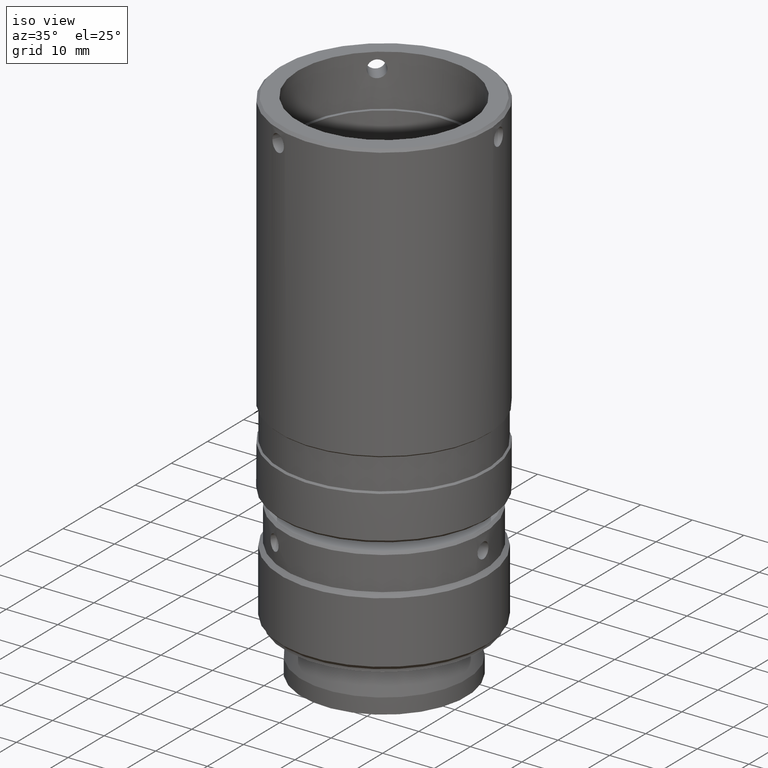
[diagram: clean part render]
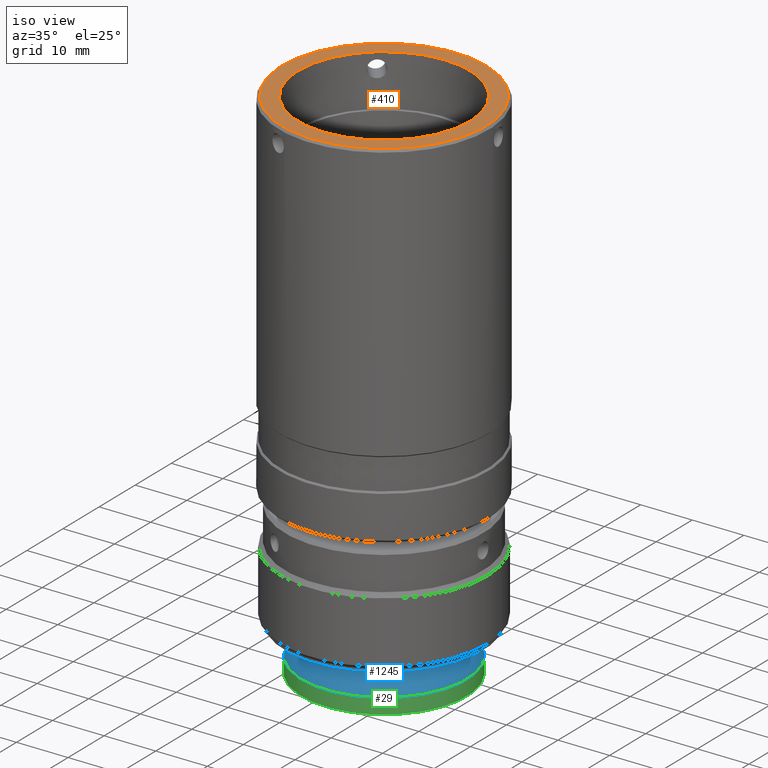
[diagram: same view with three faces highlighted in distinct colors, each labeled with its STEP entity id]
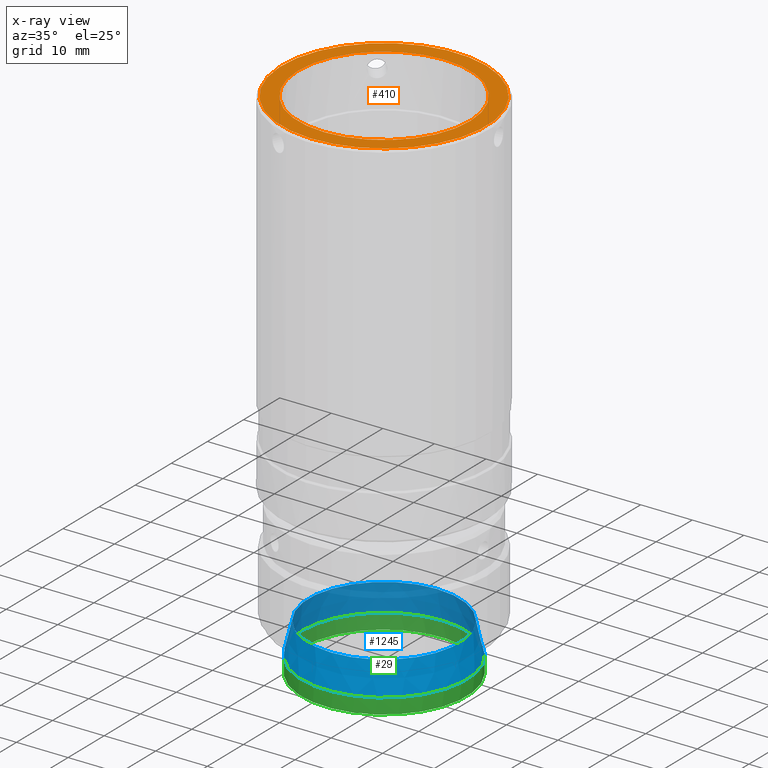
[diagram: x-ray of the same camera — body ghosted, the three highlighted faces saturated]
A machine part, iso view with three faces highlighted in distinct colors.
The next image is the same camera in x-ray (body ghosted, the three faces saturated) — at least one of them is partly hidden behind the body in this view.
Their STEP definitions:

[orange] entity #410 — the highlighted planar face has unit normal (0, 0, -1).
#165 = CIRCLE ( 'NONE', #465, 16.65000554847506820 ) ;
#217 = AXIS2_PLACEMENT_3D ( 'NONE', #1118, #1665, #883 ) ;
#410 = ADVANCED_FACE ( 'NONE', ( #1559, #1154 ), #511, .F. ) ;
#429 = CARTESIAN_POINT ( 'NONE',  ( -18.10431408128757624, -8.430711000729862903, 126.0035178494879062 ) ) ;
#465 = AXIS2_PLACEMENT_3D ( 'NONE', #855, #1672, #1145 ) ;
#503 = DIRECTION ( 'NONE',  ( 1.444179187527853431E-31, 9.579436584675309043E-32, -1.000000000000000000 ) ) ;
#511 = PLANE ( 'NONE',  #1144 ) ;
#554 = CARTESIAN_POINT ( 'NONE',  ( -20.57328830135869779, -10.41892715418058124, 126.0035178494879062 ) ) ;
#772 = CARTESIAN_POINT ( 'NONE',  ( -20.57328968191406915, -10.41892826591454124, 126.0035178494879062 ) ) ;
#855 = CARTESIAN_POINT ( 'NONE',  ( -5.136313143430668582, 2.012163911859718990, 126.0035178494879062 ) ) ;
#883 = DIRECTION ( 'NONE',  ( -0.7788586556383829684, -0.6271994854407734188, 0.000000000000000000 ) ) ;
#902 = EDGE_LOOP ( 'NONE', ( #1695 ) ) ;
#933 = VERTEX_POINT ( 'NONE', #429 ) ;
#1118 = CARTESIAN_POINT ( 'NONE',  ( -5.136313143430668582, 2.012163911859718990, 126.0035178494879062 ) ) ;
#1144 = AXIS2_PLACEMENT_3D ( 'NONE', #772, #503, #1304 ) ;
#1145 = DIRECTION ( 'NONE',  ( -0.7788586556383829684, -0.6271994854407731967, 0.000000000000000000 ) ) ;
#1154 = FACE_BOUND ( 'NONE', #902, .T. ) ;
#1304 = DIRECTION ( 'NONE',  ( -0.7788586556383829684, -0.6271994854407733078, -1.725633230170963324E-31 ) ) ;
#1385 = VERTEX_POINT ( 'NONE', #554 ) ;
#1538 = CIRCLE ( 'NONE', #217, 19.81999563871480774 ) ;
#1559 = FACE_OUTER_BOUND ( 'NONE', #1685, .T. ) ;
#1578 = EDGE_CURVE ( 'NONE', #933, #933, #165, .T. ) ;
#1640 = EDGE_CURVE ( 'NONE', #1385, #1385, #1538, .T. ) ;
#1665 = DIRECTION ( 'NONE',  ( 1.479114197289397135E-31, 9.860761315262647568E-32, -1.000000000000000000 ) ) ;
#1669 = ORIENTED_EDGE ( 'NONE', *, *, #1640, .F. ) ;
#1672 = DIRECTION ( 'NONE',  ( -1.479114197289397135E-31, -9.860761315262647568E-32, 1.000000000000000000 ) ) ;
#1685 = EDGE_LOOP ( 'NONE', ( #1669 ) ) ;
#1695 = ORIENTED_EDGE ( 'NONE', *, *, #1578, .F. ) ;

[blue] entity #1245 — the highlighted conical surface has half-angle 13 deg.
#94 = EDGE_CURVE ( 'NONE', #669, #669, #130, .T. ) ;
#102 = DIRECTION ( 'NONE',  ( -1.000000000000000000, 0.000000000000000000, -2.168404344971008868E-16 ) ) ;
#106 = DIRECTION ( 'NONE',  ( 0.000000000000000000, 1.000000000000000000, 0.000000000000000000 ) ) ;
#130 = CIRCLE ( 'NONE', #346, 16.00000000000000000 ) ;
#139 = EDGE_LOOP ( 'NONE', ( #1088 ) ) ;
#196 = CARTESIAN_POINT ( 'NONE',  ( -5.136313143430670358, 2.012163911859719434, 27.99999835367974654 ) ) ;
#346 = AXIS2_PLACEMENT_3D ( 'NONE', #847, #1382, #102 ) ;
#380 = CONICAL_SURFACE ( 'NONE', #1261, 16.00000000000000000, 0.2268928027603766828 ) ;
#396 = ORIENTED_EDGE ( 'NONE', *, *, #588, .T. ) ;
#432 = CARTESIAN_POINT ( 'NONE',  ( -5.136313143430670358, 16.62695476508963921, 33.99999835372159396 ) ) ;
#588 = EDGE_CURVE ( 'NONE', #1170, #1170, #856, .T. ) ;
#594 = EDGE_LOOP ( 'NONE', ( #396 ) ) ;
#597 = DIRECTION ( 'NONE',  ( 0.000000000000000000, 1.084202172485504434E-16, -1.000000000000000000 ) ) ;
#669 = VERTEX_POINT ( 'NONE', #1187 ) ;
#847 = CARTESIAN_POINT ( 'NONE',  ( -5.136313143430670358, 2.012163911859719434, 27.99999835367975365 ) ) ;
#856 = CIRCLE ( 'NONE', #947, 14.61479085322992155 ) ;
#947 = AXIS2_PLACEMENT_3D ( 'NONE', #1011, #1151, #106 ) ;
#1011 = CARTESIAN_POINT ( 'NONE',  ( -5.136313143430670358, 2.012163911859718546, 33.99999835372159396 ) ) ;
#1088 = ORIENTED_EDGE ( 'NONE', *, *, #94, .F. ) ;
#1110 = FACE_BOUND ( 'NONE', #594, .T. ) ;
#1151 = DIRECTION ( 'NONE',  ( 0.000000000000000000, 1.084202172485504434E-16, -1.000000000000000000 ) ) ;
#1170 = VERTEX_POINT ( 'NONE', #432 ) ;
#1187 = CARTESIAN_POINT ( 'NONE',  ( -21.13631314343066947, 2.012163911859719434, 27.99999835367975010 ) ) ;
#1245 = ADVANCED_FACE ( 'NONE', ( #1110, #1256 ), #380, .T. ) ;
#1256 = FACE_OUTER_BOUND ( 'NONE', #139, .T. ) ;
#1261 = AXIS2_PLACEMENT_3D ( 'NONE', #196, #597, #1648 ) ;
#1382 = DIRECTION ( 'NONE',  ( 1.224646799147353207E-16, 0.000000000000000000, -1.000000000000000000 ) ) ;
#1648 = DIRECTION ( 'NONE',  ( 0.000000000000000000, 1.000000000000000000, 2.168404344971008868E-16 ) ) ;

[green] entity #29 — the highlighted cylindrical surface (bore or boss wall) has radius 16 mm, axis along (0, 0, -1).
#29 = ADVANCED_FACE ( 'NONE', ( #356, #342 ), #209, .T. ) ;
#94 = EDGE_CURVE ( 'NONE', #669, #669, #130, .T. ) ;
#102 = DIRECTION ( 'NONE',  ( -1.000000000000000000, 0.000000000000000000, -2.168404344971008868E-16 ) ) ;
#130 = CIRCLE ( 'NONE', #346, 16.00000000000000000 ) ;
#156 = EDGE_LOOP ( 'NONE', ( #820 ) ) ;
#209 = CYLINDRICAL_SURFACE ( 'NONE', #1172, 16.00000000000000000 ) ;
#342 = FACE_OUTER_BOUND ( 'NONE', #802, .T. ) ;
#346 = AXIS2_PLACEMENT_3D ( 'NONE', #847, #1382, #102 ) ;
#356 = FACE_OUTER_BOUND ( 'NONE', #156, .T. ) ;
#379 = DIRECTION ( 'NONE',  ( -1.000000000000000000, 0.000000000000000000, -2.168404344971008868E-16 ) ) ;
#497 = DIRECTION ( 'NONE',  ( 1.224646799147353207E-16, 0.000000000000000000, -1.000000000000000000 ) ) ;
#624 = CARTESIAN_POINT ( 'NONE',  ( -5.136313143430673911, 2.012163911859719434, 54.99999835367975720 ) ) ;
#669 = VERTEX_POINT ( 'NONE', #1187 ) ;
#802 = EDGE_LOOP ( 'NONE', ( #1163 ) ) ;
#820 = ORIENTED_EDGE ( 'NONE', *, *, #94, .T. ) ;
#847 = CARTESIAN_POINT ( 'NONE',  ( -5.136313143430670358, 2.012163911859719434, 27.99999835367975365 ) ) ;
#1062 = EDGE_CURVE ( 'NONE', #1690, #1690, #1210, .T. ) ;
#1155 = CARTESIAN_POINT ( 'NONE',  ( -5.136313143430670358, 2.012163911859719434, 24.99999835367975365 ) ) ;
#1163 = ORIENTED_EDGE ( 'NONE', *, *, #1062, .F. ) ;
#1172 = AXIS2_PLACEMENT_3D ( 'NONE', #624, #497, #1260 ) ;
#1187 = CARTESIAN_POINT ( 'NONE',  ( -21.13631314343066947, 2.012163911859719434, 27.99999835367975010 ) ) ;
#1191 = CARTESIAN_POINT ( 'NONE',  ( -21.13631314343066947, 2.012163911859719434, 24.99999835367975010 ) ) ;
#1210 = CIRCLE ( 'NONE', #1289, 16.00000000000000000 ) ;
#1260 = DIRECTION ( 'NONE',  ( -1.000000000000000000, 0.000000000000000000, 0.000000000000000000 ) ) ;
#1289 = AXIS2_PLACEMENT_3D ( 'NONE', #1155, #1294, #379 ) ;
#1294 = DIRECTION ( 'NONE',  ( 1.224646799147353207E-16, 0.000000000000000000, -1.000000000000000000 ) ) ;
#1382 = DIRECTION ( 'NONE',  ( 1.224646799147353207E-16, 0.000000000000000000, -1.000000000000000000 ) ) ;
#1690 = VERTEX_POINT ( 'NONE', #1191 ) ;